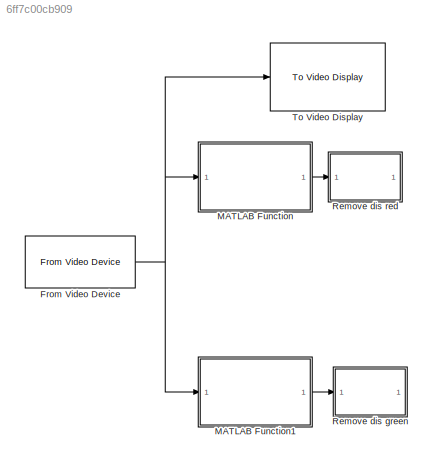
MODEL slx_6ff7c00cb909
KIND model
CONFIG AbsTol = auto
CONFIG EnableMultiTasking = off
CONFIG FixedStep = auto
CONFIG MaxStep = auto
CONFIG MinStep = auto
CONFIG RelTol = 1e-3
CONFIG SampleTimeConstraint = Unconstrained
CONFIG Solver = VariableStepAuto
CONFIG SolverName = VariableStepAuto
CONFIG StartTime = 0.0
CONFIG StopTime = 10.0
BLOCK [Reference] From Video Device  REF=imaqlib/From Video Device
  Ports = [0, 1]
  SourceBlock = imaqlib/From Video Device
  SourceProductBaseCode = IA
  SourceProductName = Image Acquisition Toolbox
  SourceType = From Video Device
  UserDataPersistent = on
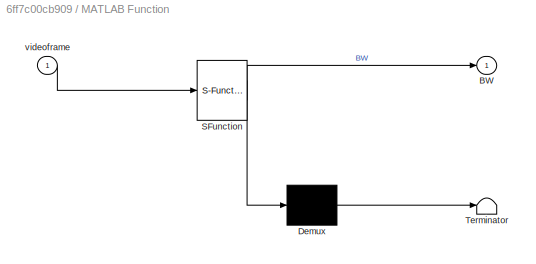
BLOCK [SubSystem] MATLAB Function
  ErrorFcn = Stateflow.Translate.translate
  PermitHierarchicalResolution = ExplicitOnly
  Ports = [1, 1]
  RequestExecContextInheritance = off
  SFBlockType = MATLAB Function
  TreatAsAtomicUnit = on
  Variant = off
BLOCK [Demux] MATLAB Function/ Demux 
  Outputs = 1
  Ports = [1, 1]
BLOCK [S-Function] MATLAB Function/ SFunction 
  EnableBusSupport = on
  FunctionName = sf_sfun
  PortCounts = [1 2]
  Ports = [1, 2]
  SFcnIsStateOwnerBlock = off
  SFunctionDeploymentMode = off
  Tag = Stateflow S-Function Simulink_1 2
BLOCK [Terminator] MATLAB Function/ Terminator 
BLOCK [Outport] MATLAB Function/BW
  IconDisplay = Port number
BLOCK [Inport] MATLAB Function/videoframe
  IconDisplay = Port number
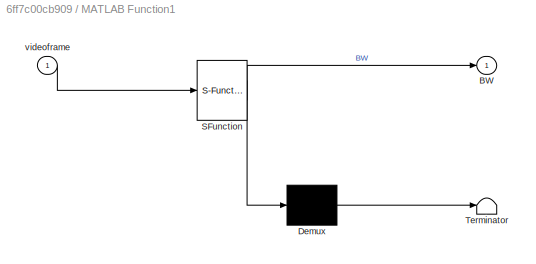
BLOCK [SubSystem] MATLAB Function1
  ErrorFcn = Stateflow.Translate.translate
  PermitHierarchicalResolution = ExplicitOnly
  Ports = [1, 1]
  RequestExecContextInheritance = off
  SFBlockType = MATLAB Function
  TreatAsAtomicUnit = on
  Variant = off
BLOCK [Demux] MATLAB Function1/ Demux 
  Outputs = 1
  Ports = [1, 1]
BLOCK [S-Function] MATLAB Function1/ SFunction 
  EnableBusSupport = on
  FunctionName = sf_sfun
  PortCounts = [1 2]
  Ports = [1, 2]
  SFcnIsStateOwnerBlock = off
  SFunctionDeploymentMode = off
  Tag = Stateflow S-Function Simulink_1 1
BLOCK [Terminator] MATLAB Function1/ Terminator 
BLOCK [Outport] MATLAB Function1/BW
  IconDisplay = Port number
BLOCK [Inport] MATLAB Function1/videoframe
  IconDisplay = Port number
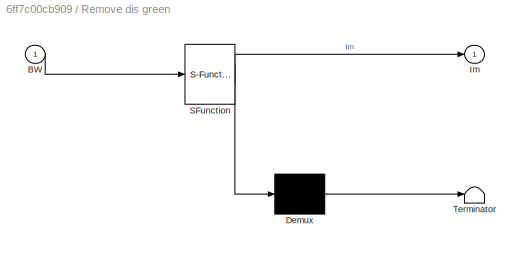
BLOCK [SubSystem] Remove dis green
  ErrorFcn = Stateflow.Translate.translate
  PermitHierarchicalResolution = ExplicitOnly
  Ports = [1, 1]
  RequestExecContextInheritance = off
  SFBlockType = MATLAB Function
  TreatAsAtomicUnit = on
  Variant = off
BLOCK [Demux] Remove dis green/ Demux 
  Outputs = 1
  Ports = [1, 1]
BLOCK [S-Function] Remove dis green/ SFunction 
  EnableBusSupport = on
  FunctionName = sf_sfun
  PortCounts = [1 2]
  Ports = [1, 2]
  SFcnIsStateOwnerBlock = off
  SFunctionDeploymentMode = off
  Tag = Stateflow S-Function Simulink_1 3
BLOCK [Terminator] Remove dis green/ Terminator 
BLOCK [Inport] Remove dis green/BW
  IconDisplay = Port number
BLOCK [Outport] Remove dis green/Im
  IconDisplay = Port number
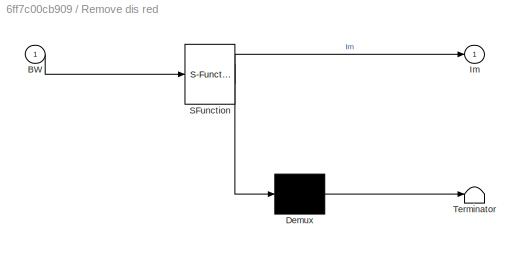
BLOCK [SubSystem] Remove dis red
  ErrorFcn = Stateflow.Translate.translate
  PermitHierarchicalResolution = ExplicitOnly
  Ports = [1, 1]
  RequestExecContextInheritance = off
  SFBlockType = MATLAB Function
  TreatAsAtomicUnit = on
  Variant = off
BLOCK [Demux] Remove dis red/ Demux 
  Outputs = 1
  Ports = [1, 1]
BLOCK [S-Function] Remove dis red/ SFunction 
  EnableBusSupport = on
  FunctionName = sf_sfun
  PortCounts = [1 2]
  Ports = [1, 2]
  SFcnIsStateOwnerBlock = off
  SFunctionDeploymentMode = off
  Tag = Stateflow S-Function Simulink_1 4
BLOCK [Terminator] Remove dis red/ Terminator 
BLOCK [Inport] Remove dis red/BW
  IconDisplay = Port number
BLOCK [Outport] Remove dis red/Im
  IconDisplay = Port number
BLOCK [Reference] To Video Display  REF=visionsinks/To Video Display
  Ports = [1]
  SourceBlock = visionsinks/To Video Display
  SourceProductBaseCode = VP
  SourceProductName = Computer Vision System Toolbox
  SourceType = To Video Display
NET From Video Device:1 -> MATLAB Function1:1, MATLAB Function:1, To Video Display:1
LINE MATLAB Function1:1 -> Remove dis green:1
LINE MATLAB Function:1 -> Remove dis red:1
note: NET lines group one-source signal fan-out (src -> all destinations, sorted); 1:1 wires keep LINE
CHART MATLAB Function1 states=1 transitions=1
  STATE_LABEL 'eML_blk_kernel()'
  STATE_LABEL 'SCRIPT:\nfunction BW = fcn(videoframe)\n\n    I = rgb2hsv(videoframe);\n\n% Define thresholds for channel 1 based on histogram settings\n    channel1Min = 0.476;\n    channel1Max = 0.535;\n    \n    % Define thresholds for channel 2 based on histogram settings\n    channel2Min = 0.486;\n    channel2Max = 1.000;\n    \n    % Define thresholds for channel 3 based on histogram settings\n    channel3Min = 0.257;\n  ...<+291ch>'
CHART MATLAB Function states=1 transitions=1
  STATE_LABEL 'eML_blk_kernel()'
  STATE_LABEL 'SCRIPT:\nfunction BW = fcn(videoframe)\n\n    I = rgb2hsv(videoframe);\n\n    % Define thresholds for channel 1 based on histogram settings\n    channel1Min = 0.925;\n    channel1Max = 0.032;\n    \n    % Define thresholds for channel 2 based on histogram settings\n    channel2Min = 0.127;\n    channel2Max = 1.000;\n    \n    % Define thresholds for channel 3 based on histogram settings\n    channel3Min = 0.349...<+293ch>'
CHART Remove dis green states=1 transitions=1
  STATE_LABEL 'eML_blk_kernel()'
  STATE_LABEL "SCRIPT:\nfunction Im = fcn(BW)\n\n diskElem = strel('disk',3);\n Im = imopen(BW,diskElem);\n"
CHART Remove dis red states=1 transitions=1
  STATE_LABEL 'eML_blk_kernel()'
  STATE_LABEL "SCRIPT:\nfunction Im = fcn(BW)\n\n diskElem = strel('disk',3);\n Im = imopen(BW,diskElem);\n"
